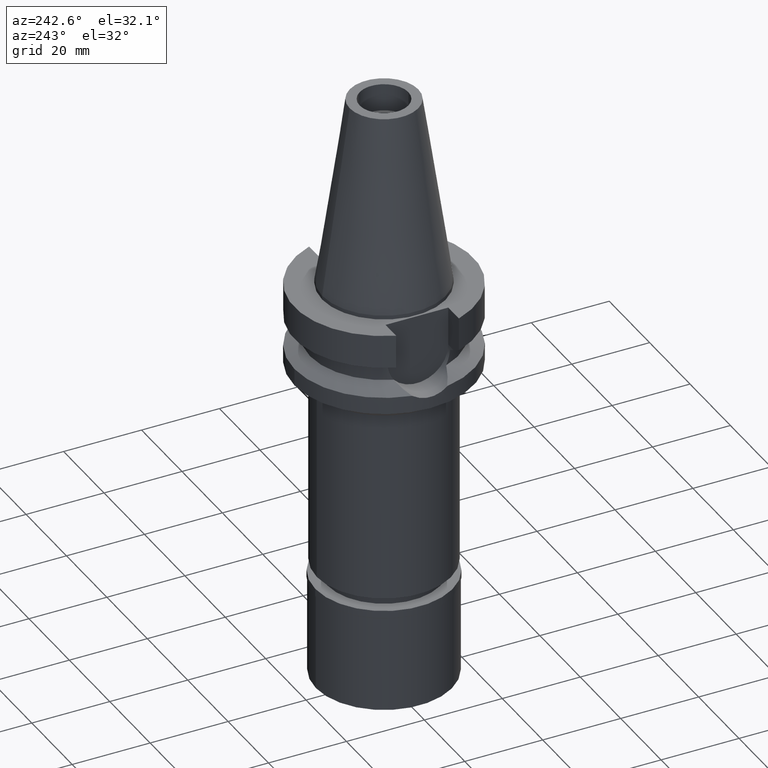
[diagram: clean part render]
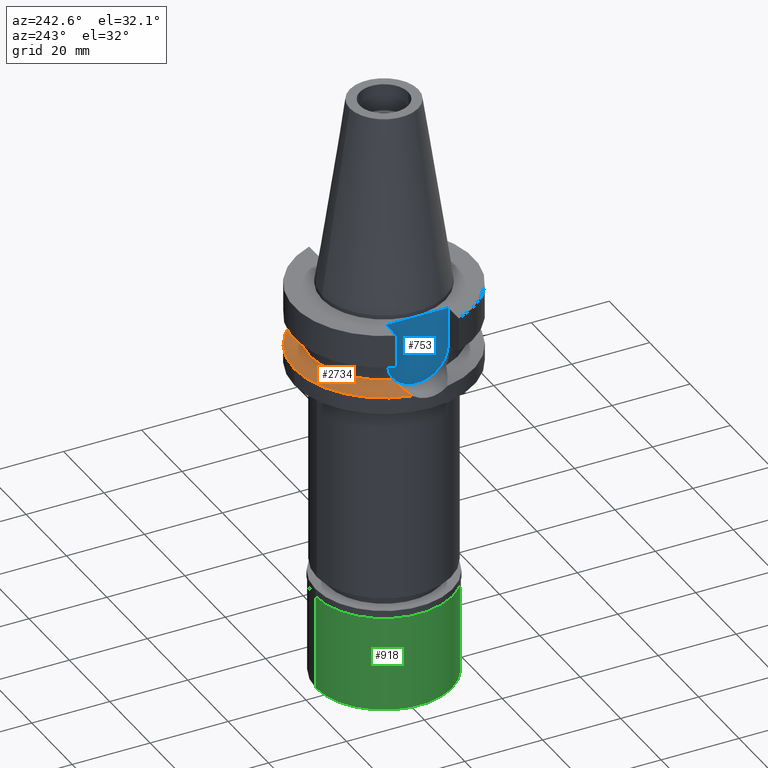
[diagram: same view with three faces highlighted in distinct colors, each labeled with its STEP entity id]
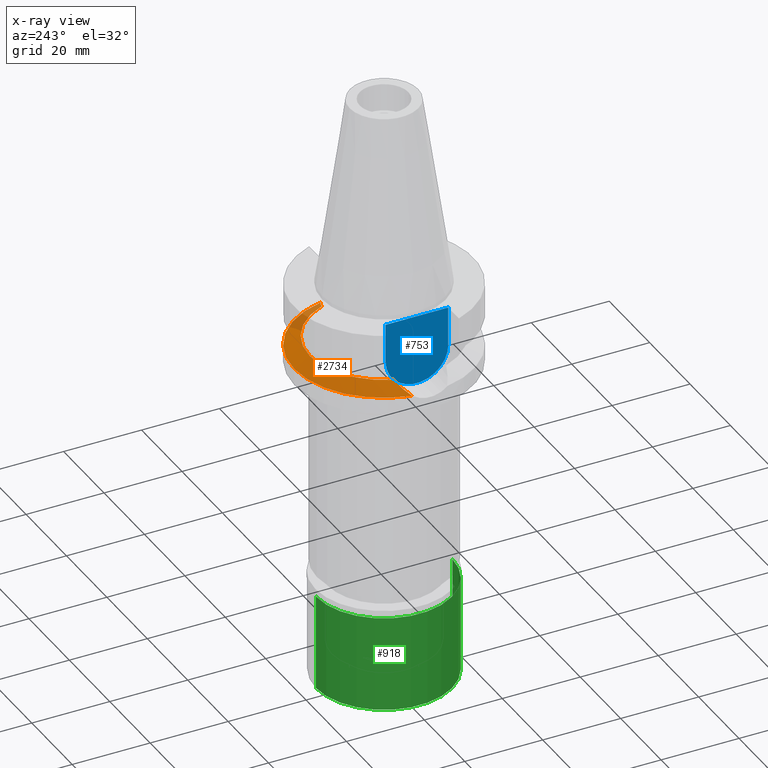
[diagram: x-ray of the same camera — body ghosted, the three highlighted faces saturated]
A machine part, auxiliary view with three faces highlighted in distinct colors.
The next image is the same camera in x-ray (body ghosted, the three faces saturated) — at least one of them is partly hidden behind the body in this view.
Their STEP definitions:

[orange] entity #2734 — the highlighted conical surface has half-angle 60 deg.
#24 = EDGE_CURVE ( 'NONE', #715, #2758, #2265, .T. ) ;
#28 = DIRECTION ( 'NONE',  ( 0.0000000000000000000, 0.0000000000000000000, -1.000000000000000000 ) ) ;
#68 = CARTESIAN_POINT ( 'NONE',  ( -22.55786346208000026, 4.488072640470000430, -17.63279163029000074 ) ) ;
#75 = CARTESIAN_POINT ( 'NONE',  ( 22.55786346208000026, 4.488072640470000430, -17.63279163029000074 ) ) ;
#81 = ORIENTED_EDGE ( 'NONE', *, *, #1713, .F. ) ;
#157 = CARTESIAN_POINT ( 'NONE',  ( 0.0000000000000000000, 1.022848384030000006E-14, -17.63279163029000074 ) ) ;
#183 = EDGE_CURVE ( 'NONE', #2692, #2222, #1144, .T. ) ;
#217 = CARTESIAN_POINT ( 'NONE',  ( -22.55786346208000026, 4.488072640470000430, -17.63279163029000074 ) ) ;
#250 = CARTESIAN_POINT ( 'NONE',  ( -17.75736593456000278, 6.758398853743999624, -15.32339055352999857 ) ) ;
#282 = ORIENTED_EDGE ( 'NONE', *, *, #972, .F. ) ;
#283 = ORIENTED_EDGE ( 'NONE', *, *, #183, .F. ) ;
#302 = CONICAL_SURFACE ( 'NONE', #964, 21.00000000000000000, 1.047197551196400456 ) ;
#422 = AXIS2_PLACEMENT_3D ( 'NONE', #2828, #28, #1211 ) ;
#515 = CIRCLE ( 'NONE', #422, 23.00000000000000000 ) ;
#554 = DIRECTION ( 'NONE',  ( 0.0000000000000000000, 1.000000000000000000, 0.0000000000000000000 ) ) ;
#715 = VERTEX_POINT ( 'NONE', #75 ) ;
#724 = DIRECTION ( 'NONE',  ( 0.0000000000000000000, 0.0000000000000000000, -1.000000000000000000 ) ) ;
#743 = EDGE_CURVE ( 'NONE', #2589, #715, #515, .T. ) ;
#758 = CIRCLE ( 'NONE', #2607, 19.00000000000000000 ) ;
#940 = DIRECTION ( 'NONE',  ( 0.0000000000000000000, -1.000000000000000000, 0.0000000000000000000 ) ) ;
#964 = AXIS2_PLACEMENT_3D ( 'NONE', #2079, #724, #940 ) ;
#972 = EDGE_CURVE ( 'NONE', #2758, #2692, #758, .T. ) ;
#1029 = EDGE_LOOP ( 'NONE', ( #282, #2667, #1042, #81, #283 ) ) ;
#1042 = ORIENTED_EDGE ( 'NONE', *, *, #743, .F. ) ;
#1144 = B_SPLINE_CURVE_WITH_KNOTS ( 'NONE', 3,
 ( #250, #2254, #2302, #217 ),
 .UNSPECIFIED., .F., .F.,
 ( 4, 4 ),
 ( 0.0000000000000000000, 1.000000000000000000 ),
 .UNSPECIFIED. ) ;
#1211 = DIRECTION ( 'NONE',  ( 0.0000000000000000000, 1.000000000000000000, 0.0000000000000000000 ) ) ;
#1309 = CARTESIAN_POINT ( 'NONE',  ( 21.37344794608372922, 5.343258989363285139, -17.05846002348370760 ) ) ;
#1339 = FACE_OUTER_BOUND ( 'NONE', #1029, .T. ) ;
#1490 = CARTESIAN_POINT ( 'NONE',  ( 17.75736593456000278, 6.758398853743999624, -15.32339055352999857 ) ) ;
#1528 = CIRCLE ( 'NONE', #2424, 23.00000000000001066 ) ;
#1709 = CARTESIAN_POINT ( 'NONE',  ( 19.77328210357706340, 6.137069160724234251, -16.28355951939463964 ) ) ;
#1713 = EDGE_CURVE ( 'NONE', #2222, #2589, #1528, .T. ) ;
#1785 = DIRECTION ( 'NONE',  ( -0.9807766722643714852, 0.1951335930638943839, 0.0000000000000000000 ) ) ;
#1857 = CARTESIAN_POINT ( 'NONE',  ( -17.75736593456000278, 6.758398853743999624, -15.32339055352999857 ) ) ;
#2079 = CARTESIAN_POINT ( 'NONE',  ( 0.0000000000000000000, 1.022848384030000006E-14, -16.47809109191000232 ) ) ;
#2222 = VERTEX_POINT ( 'NONE', #68 ) ;
#2254 = CARTESIAN_POINT ( 'NONE',  ( -19.77328210345211090, 6.137069160772876231, -16.28355951931949974 ) ) ;
#2265 = B_SPLINE_CURVE_WITH_KNOTS ( 'NONE', 3,
 ( #2450, #1309, #1709, #1490 ),
 .UNSPECIFIED., .F., .F.,
 ( 4, 4 ),
 ( 0.0000000000000000000, 1.000000000000000000 ),
 .UNSPECIFIED. ) ;
#2277 = DIRECTION ( 'NONE',  ( 0.0000000000000000000, 0.0000000000000000000, -1.000000000000000000 ) ) ;
#2302 = CARTESIAN_POINT ( 'NONE',  ( -21.37344794595877673, 5.343258989437599915, -17.05846002343381329 ) ) ;
#2424 = AXIS2_PLACEMENT_3D ( 'NONE', #157, #2277, #1785 ) ;
#2450 = CARTESIAN_POINT ( 'NONE',  ( 22.55786346208000026, 4.488072640470000430, -17.63279163029000074 ) ) ;
#2589 = VERTEX_POINT ( 'NONE', #2801 ) ;
#2607 = AXIS2_PLACEMENT_3D ( 'NONE', #2634, #2909, #554 ) ;
#2625 = CARTESIAN_POINT ( 'NONE',  ( 17.75736593456000278, 6.758398853743999624, -15.32339055352999857 ) ) ;
#2634 = CARTESIAN_POINT ( 'NONE',  ( 0.0000000000000000000, 1.022848384030000006E-14, -15.32339055352999857 ) ) ;
#2667 = ORIENTED_EDGE ( 'NONE', *, *, #24, .F. ) ;
#2692 = VERTEX_POINT ( 'NONE', #1857 ) ;
#2734 = ADVANCED_FACE ( 'NONE', ( #1339 ), #302, .T. ) ;
#2758 = VERTEX_POINT ( 'NONE', #2625 ) ;
#2801 = CARTESIAN_POINT ( 'NONE',  ( 0.0000000000000000000, 23.00000000000000000, -17.63279163029000074 ) ) ;
#2828 = CARTESIAN_POINT ( 'NONE',  ( 0.0000000000000000000, 1.022848384030000006E-14, -17.63279163029000074 ) ) ;
#2909 = DIRECTION ( 'NONE',  ( 0.0000000000000000000, 0.0000000000000000000, 1.000000000000000000 ) ) ;

[blue] entity #753 — the highlighted planar face has unit normal (-1, 0, 0).
#273 = CARTESIAN_POINT ( 'NONE',  ( -16.29999999999999716, 8.050000000000000711, -10.94999999999999929 ) ) ;
#277 = AXIS2_PLACEMENT_3D ( 'NONE', #544, #776, #1869 ) ;
#313 = LINE ( 'NONE', #2176, #2380 ) ;
#544 = CARTESIAN_POINT ( 'NONE',  ( -16.29999999999999716, 2.249676170033999711E-14, 0.0000000000000000000 ) ) ;
#604 = EDGE_CURVE ( 'NONE', #703, #1643, #848, .T. ) ;
#667 = CARTESIAN_POINT ( 'NONE',  ( -16.29999999999999716, 8.050000000000000711, -1.000000000000000000 ) ) ;
#685 = EDGE_LOOP ( 'NONE', ( #2099, #985, #2371, #2050 ) ) ;
#703 = VERTEX_POINT ( 'NONE', #2026 ) ;
#713 = CARTESIAN_POINT ( 'NONE',  ( -16.29999999999999716, -8.050000000000000711, -1.000000000000000000 ) ) ;
#753 = ADVANCED_FACE ( 'NONE', ( #954 ), #1895, .T. ) ;
#776 = DIRECTION ( 'NONE',  ( -1.000000000000000000, 0.0000000000000000000, 0.0000000000000000000 ) ) ;
#848 = CIRCLE ( 'NONE', #2641, 8.050000000000000711 ) ;
#867 = VECTOR ( 'NONE', #2081, 1000.000000000000000 ) ;
#890 = CARTESIAN_POINT ( 'NONE',  ( -16.29999999999999716, 1.981478521019999946E-14, -10.94999999999999929 ) ) ;
#914 = LINE ( 'NONE', #2116, #867 ) ;
#954 = FACE_OUTER_BOUND ( 'NONE', #685, .T. ) ;
#985 = ORIENTED_EDGE ( 'NONE', *, *, #604, .F. ) ;
#1160 = LINE ( 'NONE', #713, #2323 ) ;
#1405 = DIRECTION ( 'NONE',  ( 0.0000000000000000000, 1.000000000000000000, 0.0000000000000000000 ) ) ;
#1457 = VERTEX_POINT ( 'NONE', #1743 ) ;
#1574 = DIRECTION ( 'NONE',  ( 0.0000000000000000000, 0.0000000000000000000, -1.000000000000000000 ) ) ;
#1643 = VERTEX_POINT ( 'NONE', #273 ) ;
#1743 = CARTESIAN_POINT ( 'NONE',  ( -16.29999999999999716, -8.050000000000000711, -1.000000000000000000 ) ) ;
#1833 = EDGE_CURVE ( 'NONE', #1643, #2602, #914, .T. ) ;
#1869 = DIRECTION ( 'NONE',  ( 0.0000000000000000000, 0.0000000000000000000, 1.000000000000000000 ) ) ;
#1895 = PLANE ( 'NONE',  #277 ) ;
#1934 = DIRECTION ( 'NONE',  ( 0.0000000000000000000, 0.0000000000000000000, -1.000000000000000000 ) ) ;
#1965 = EDGE_CURVE ( 'NONE', #1457, #703, #313, .T. ) ;
#2026 = CARTESIAN_POINT ( 'NONE',  ( -16.29999999999999716, -8.050000000000000711, -10.94999999999999929 ) ) ;
#2050 = ORIENTED_EDGE ( 'NONE', *, *, #2295, .T. ) ;
#2081 = DIRECTION ( 'NONE',  ( 0.0000000000000000000, 0.0000000000000000000, 1.000000000000000000 ) ) ;
#2099 = ORIENTED_EDGE ( 'NONE', *, *, #1833, .F. ) ;
#2116 = CARTESIAN_POINT ( 'NONE',  ( -16.29999999999999716, 8.050000000000000711, -10.94999999999999929 ) ) ;
#2176 = CARTESIAN_POINT ( 'NONE',  ( -16.29999999999999716, -8.050000000000000711, -1.000000000000000000 ) ) ;
#2295 = EDGE_CURVE ( 'NONE', #1457, #2602, #1160, .T. ) ;
#2323 = VECTOR ( 'NONE', #1405, 1000.000000000000000 ) ;
#2371 = ORIENTED_EDGE ( 'NONE', *, *, #1965, .F. ) ;
#2380 = VECTOR ( 'NONE', #1934, 1000.000000000000000 ) ;
#2548 = DIRECTION ( 'NONE',  ( 1.000000000000000000, 0.0000000000000000000, 0.0000000000000000000 ) ) ;
#2602 = VERTEX_POINT ( 'NONE', #667 ) ;
#2641 = AXIS2_PLACEMENT_3D ( 'NONE', #890, #2548, #1574 ) ;

[green] entity #918 — the highlighted cylindrical surface (partial cylindrical patch) has radius 17.5 mm, axis along (0, 0, -1).
#40 = EDGE_CURVE ( 'NONE', #1753, #730, #1629, .T. ) ;
#44 = VECTOR ( 'NONE', #595, 1000.000000000000000 ) ;
#160 = EDGE_CURVE ( 'NONE', #1508, #1433, #200, .T. ) ;
#178 = AXIS2_PLACEMENT_3D ( 'NONE', #1255, #2236, #1075 ) ;
#200 = CIRCLE ( 'NONE', #2281, 17.50000000000000000 ) ;
#215 = DIRECTION ( 'NONE',  ( 0.0000000000000000000, 0.0000000000000000000, -1.000000000000000000 ) ) ;
#315 = LINE ( 'NONE', #1906, #44 ) ;
#414 = DIRECTION ( 'NONE',  ( 0.0000000000000000000, -1.000000000000000000, 0.0000000000000000000 ) ) ;
#595 = DIRECTION ( 'NONE',  ( 0.0000000000000000000, 0.0000000000000000000, -1.000000000000000000 ) ) ;
#614 = EDGE_CURVE ( 'NONE', #1508, #730, #2537, .T. ) ;
#625 = CARTESIAN_POINT ( 'NONE',  ( 0.0000000000000000000, 17.50000000000000000, -26.70000000000000284 ) ) ;
#730 = VERTEX_POINT ( 'NONE', #1180 ) ;
#801 = ORIENTED_EDGE ( 'NONE', *, *, #1685, .T. ) ;
#918 = ADVANCED_FACE ( 'NONE', ( #1963 ), #2201, .T. ) ;
#1030 = DIRECTION ( 'NONE',  ( 0.0000000000000000000, 0.0000000000000000000, 1.000000000000000000 ) ) ;
#1043 = CARTESIAN_POINT ( 'NONE',  ( 0.0000000000000000000, 17.50000000000000000, -2.100000000000000089 ) ) ;
#1046 = CARTESIAN_POINT ( 'NONE',  ( 0.0000000000000000000, 0.0000000000000000000, -26.70000000000000284 ) ) ;
#1075 = DIRECTION ( 'NONE',  ( 0.0000000000000000000, -1.000000000000000000, 0.0000000000000000000 ) ) ;
#1119 = CARTESIAN_POINT ( 'NONE',  ( 0.0000000000000000000, -17.50000000000000000, -2.100000000000000089 ) ) ;
#1180 = CARTESIAN_POINT ( 'NONE',  ( 0.0000000000000000000, -17.50000000000000000, -26.70000000000000284 ) ) ;
#1255 = CARTESIAN_POINT ( 'NONE',  ( 0.0000000000000000000, 0.0000000000000000000, 0.0000000000000000000 ) ) ;
#1318 = CARTESIAN_POINT ( 'NONE',  ( 0.0000000000000000000, -17.50000000000000000, -2.100000000000000089 ) ) ;
#1369 = CARTESIAN_POINT ( 'NONE',  ( 0.0000000000000000000, 0.0000000000000000000, -2.100000000000000089 ) ) ;
#1433 = VERTEX_POINT ( 'NONE', #1043 ) ;
#1508 = VERTEX_POINT ( 'NONE', #1119 ) ;
#1629 = CIRCLE ( 'NONE', #2529, 17.50000000000000000 ) ;
#1685 = EDGE_CURVE ( 'NONE', #1433, #1753, #315, .T. ) ;
#1753 = VERTEX_POINT ( 'NONE', #625 ) ;
#1771 = DIRECTION ( 'NONE',  ( 0.0000000000000000000, 0.0000000000000000000, -1.000000000000000000 ) ) ;
#1906 = CARTESIAN_POINT ( 'NONE',  ( 0.0000000000000000000, 17.50000000000000000, -2.100000000000000089 ) ) ;
#1963 = FACE_OUTER_BOUND ( 'NONE', #2701, .T. ) ;
#1968 = DIRECTION ( 'NONE',  ( 0.0000000000000000000, 1.000000000000000000, 0.0000000000000000000 ) ) ;
#2201 = CYLINDRICAL_SURFACE ( 'NONE', #178, 17.50000000000000000 ) ;
#2232 = ORIENTED_EDGE ( 'NONE', *, *, #160, .T. ) ;
#2236 = DIRECTION ( 'NONE',  ( 0.0000000000000000000, 0.0000000000000000000, -1.000000000000000000 ) ) ;
#2281 = AXIS2_PLACEMENT_3D ( 'NONE', #1369, #1771, #414 ) ;
#2529 = AXIS2_PLACEMENT_3D ( 'NONE', #1046, #1030, #1968 ) ;
#2537 = LINE ( 'NONE', #1318, #2976 ) ;
#2701 = EDGE_LOOP ( 'NONE', ( #2829, #2972, #2232, #801 ) ) ;
#2829 = ORIENTED_EDGE ( 'NONE', *, *, #40, .T. ) ;
#2972 = ORIENTED_EDGE ( 'NONE', *, *, #614, .F. ) ;
#2976 = VECTOR ( 'NONE', #215, 1000.000000000000000 ) ;